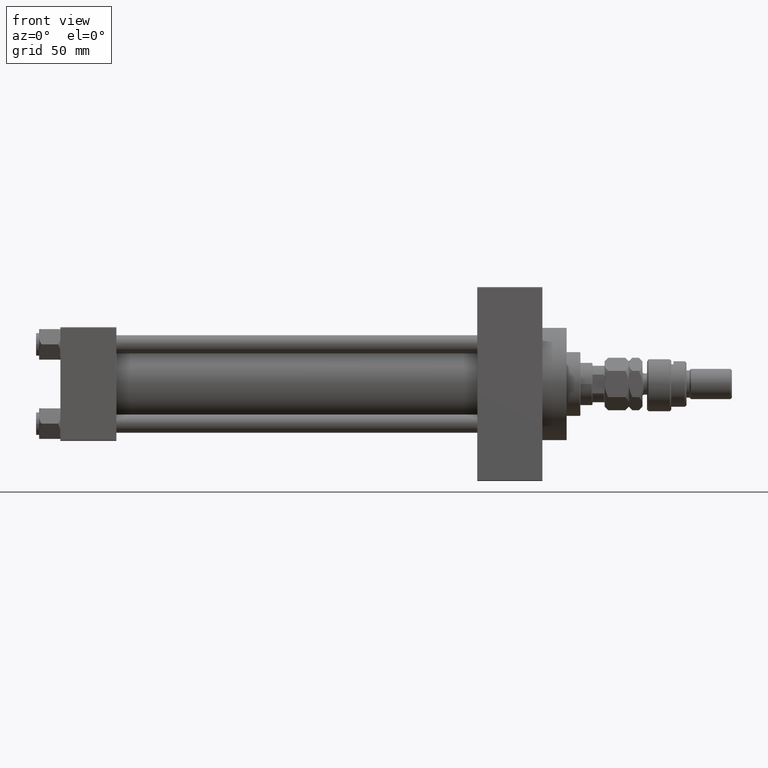
[diagram: clean part render]
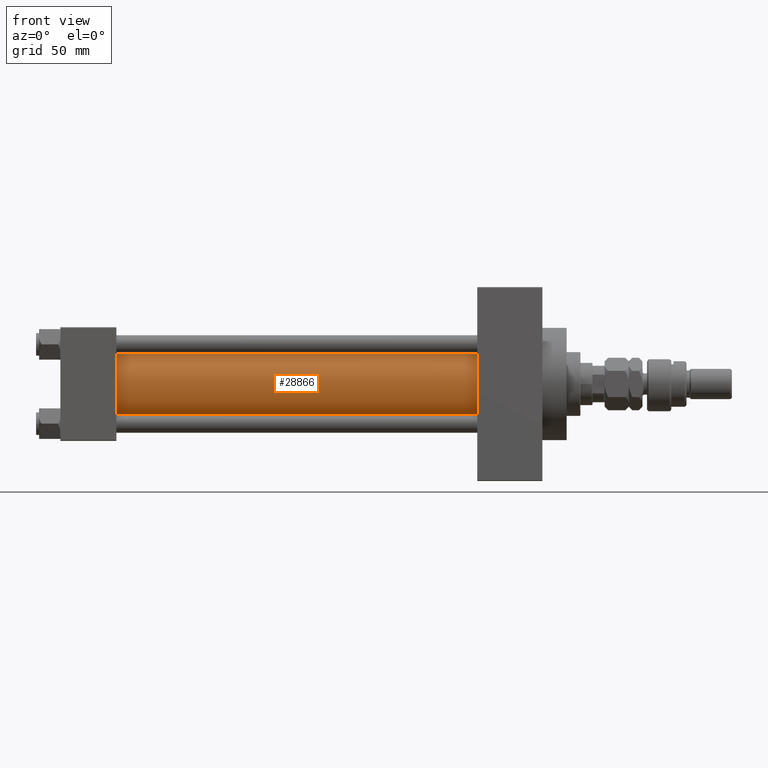
[diagram: same view with one face highlighted and labeled with its STEP entity id]
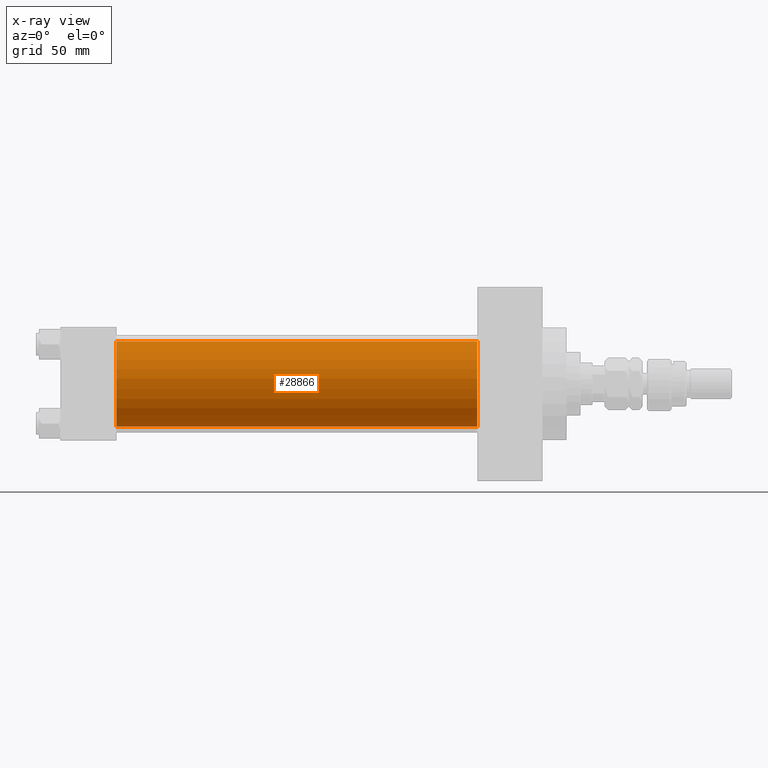
[diagram: x-ray of the same camera — body ghosted, the highlighted face saturated]
A machine part, front view. The second image highlights one B-rep face of the part: STEP entity #28866.
The next image is the same camera in x-ray: the body ghosted, the highlighted face saturated — about 0% of this face is hidden behind the body in this view.
In plain terms, the highlighted cylindrical surface (partial cylindrical patch) has radius 28 mm, axis along (-1, -0, -0).
Its self-contained STEP definition (entity closure, byte-faithful):
#680 = DIRECTION ( 'NONE',  ( 0.000000000000000000, 0.000000000000000000, 1.000000000000000000 ) ) ;
#926 = DIRECTION ( 'NONE',  ( 1.000000000000000000, -0.000000000000000000, 0.000000000000000000 ) ) ;
#1032 = CARTESIAN_POINT ( 'NONE',  ( 274.9999999999999432, 8.269258236473784371E-16, -28.00000000000000000 ) ) ;
#1226 = DIRECTION ( 'NONE',  ( 1.000000000000000000, 0.000000000000000000, 0.000000000000000000 ) ) ;
#4791 = VECTOR ( 'NONE', #20583, 1000.000000000000000 ) ;
#5511 = CYLINDRICAL_SURFACE ( 'NONE', #6571, 28.00000000000000000 ) ;
#5520 = EDGE_CURVE ( 'NONE', #47081, #26118, #32661, .T. ) ;
#5738 = EDGE_CURVE ( 'NONE', #18505, #21503, #26168, .T. ) ;
#6571 = AXIS2_PLACEMENT_3D ( 'NONE', #27902, #47954, #40091 ) ;
#10796 = ORIENTED_EDGE ( 'NONE', *, *, #5520, .F. ) ;
#11176 = CARTESIAN_POINT ( 'NONE',  ( 37.00000000000000711, -2.602085213965210642E-15, 28.00000000000000000 ) ) ;
#14922 = VECTOR ( 'NONE', #31519, 1000.000000000000000 ) ;
#16023 = CARTESIAN_POINT ( 'NONE',  ( 274.9999999999999432, -2.602085213965210642E-15, 28.00000000000000000 ) ) ;
#16049 = CARTESIAN_POINT ( 'NONE',  ( 37.00000000000000711, 8.269258236473784371E-16, -28.00000000000000000 ) ) ;
#18505 = VERTEX_POINT ( 'NONE', #11176 ) ;
#19709 = EDGE_CURVE ( 'NONE', #26118, #21503, #20102, .T. ) ;
#20102 = LINE ( 'NONE', #1032, #4791 ) ;
#20520 = FACE_OUTER_BOUND ( 'NONE', #38597, .T. ) ;
#20527 = CARTESIAN_POINT ( 'NONE',  ( 274.9999999999999432, -2.602085213965210642E-15, 0.000000000000000000 ) ) ;
#20583 = DIRECTION ( 'NONE',  ( -1.000000000000000000, -0.000000000000000000, -0.000000000000000000 ) ) ;
#21503 = VERTEX_POINT ( 'NONE', #16049 ) ;
#22779 = CARTESIAN_POINT ( 'NONE',  ( 274.9999999999999432, 8.269258236473784371E-16, -28.00000000000000000 ) ) ;
#26118 = VERTEX_POINT ( 'NONE', #22779 ) ;
#26168 = CIRCLE ( 'NONE', #43244, 28.00000000000000000 ) ;
#27852 = CARTESIAN_POINT ( 'NONE',  ( 37.00000000000000711, -2.602085213965210642E-15, 0.000000000000000000 ) ) ;
#27902 = CARTESIAN_POINT ( 'NONE',  ( 274.9999999999999432, -2.602085213965210642E-15, 0.000000000000000000 ) ) ;
#28866 = ADVANCED_FACE ( 'NONE', ( #20520 ), #5511, .T. ) ;
#30753 = CARTESIAN_POINT ( 'NONE',  ( 274.9999999999999432, -2.602085213965210642E-15, 28.00000000000000000 ) ) ;
#30890 = ORIENTED_EDGE ( 'NONE', *, *, #19709, .F. ) ;
#31049 = AXIS2_PLACEMENT_3D ( 'NONE', #20527, #1226, #47959 ) ;
#31149 = ORIENTED_EDGE ( 'NONE', *, *, #5738, .T. ) ;
#31519 = DIRECTION ( 'NONE',  ( -1.000000000000000000, -0.000000000000000000, -0.000000000000000000 ) ) ;
#32661 = CIRCLE ( 'NONE', #31049, 28.00000000000000000 ) ;
#35092 = ORIENTED_EDGE ( 'NONE', *, *, #47227, .T. ) ;
#38597 = EDGE_LOOP ( 'NONE', ( #30890, #10796, #35092, #31149 ) ) ;
#39652 = LINE ( 'NONE', #16023, #14922 ) ;
#40091 = DIRECTION ( 'NONE',  ( 0.000000000000000000, 0.000000000000000000, 1.000000000000000000 ) ) ;
#43244 = AXIS2_PLACEMENT_3D ( 'NONE', #27852, #926, #680 ) ;
#47081 = VERTEX_POINT ( 'NONE', #30753 ) ;
#47227 = EDGE_CURVE ( 'NONE', #47081, #18505, #39652, .T. ) ;
#47954 = DIRECTION ( 'NONE',  ( -1.000000000000000000, -0.000000000000000000, -0.000000000000000000 ) ) ;
#47959 = DIRECTION ( 'NONE',  ( 0.000000000000000000, 0.000000000000000000, -1.000000000000000000 ) ) ;